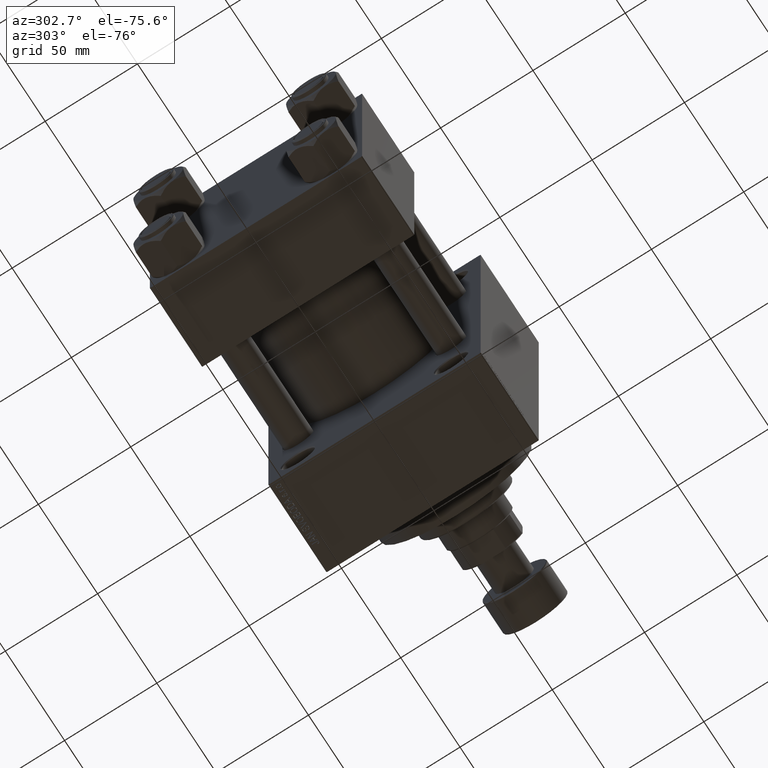
[diagram: clean part render]
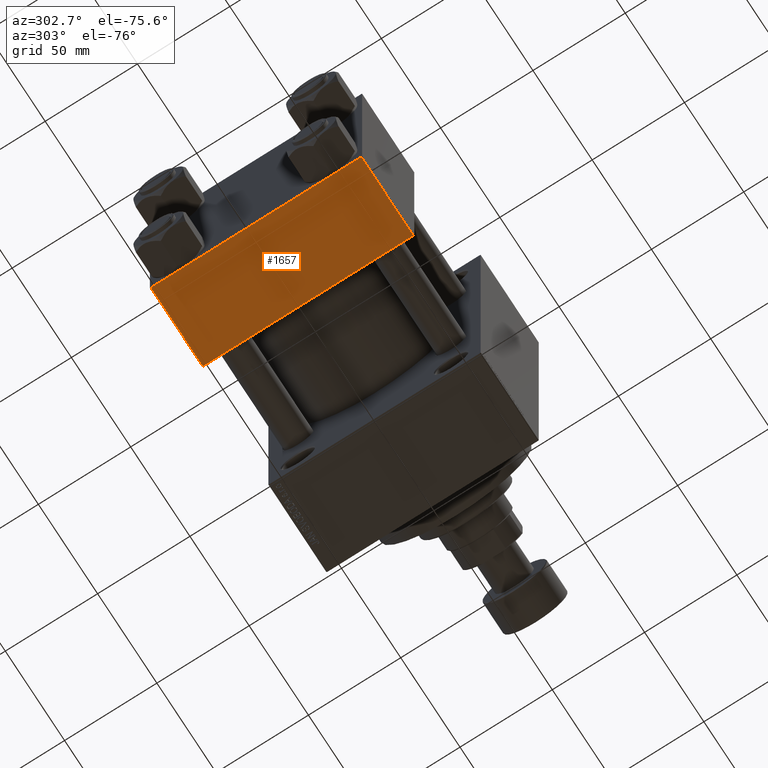
[diagram: same view with one face highlighted and labeled with its STEP entity id]
A machine part, auxiliary view. The second image highlights one B-rep face of the part: STEP entity #1657.
In plain terms, the highlighted planar face has unit normal (0, 0, -1).
Its self-contained STEP definition (entity closure, byte-faithful):
#1657 = ADVANCED_FACE ( 'NONE', ( #33632 ), #8055, .T. ) ;
#3083 = ORIENTED_EDGE ( 'NONE', *, *, #17279, .T. ) ;
#3679 = DIRECTION ( 'NONE',  ( 0.000000000000000000, 1.000000000000000000, 1.206764157201257291E-16 ) ) ;
#3775 = EDGE_CURVE ( 'NONE', #44415, #26022, #28232, .T. ) ;
#8055 = PLANE ( 'NONE',  #34194 ) ;
#8465 = EDGE_CURVE ( 'NONE', #44415, #14851, #14925, .T. ) ;
#8749 = CARTESIAN_POINT ( 'NONE',  ( 44.00000000000000000, 57.00000000000002842, -57.49999999999999289 ) ) ;
#9558 = VECTOR ( 'NONE', #44848, 1000.000000000000000 ) ;
#10482 = DIRECTION ( 'NONE',  ( -1.000000000000000000, 0.000000000000000000, 0.000000000000000000 ) ) ;
#13363 = LINE ( 'NONE', #20431, #29957 ) ;
#14851 = VERTEX_POINT ( 'NONE', #34760 ) ;
#14925 = LINE ( 'NONE', #37568, #9558 ) ;
#17279 = EDGE_CURVE ( 'NONE', #26022, #20741, #13363, .T. ) ;
#17546 = LINE ( 'NONE', #32404, #38543 ) ;
#18260 = ORIENTED_EDGE ( 'NONE', *, *, #18312, .T. ) ;
#18312 = EDGE_CURVE ( 'NONE', #20741, #14851, #17546, .T. ) ;
#19459 = ORIENTED_EDGE ( 'NONE', *, *, #8465, .F. ) ;
#20431 = CARTESIAN_POINT ( 'NONE',  ( 44.00000000000000000, 57.50000000000000000, -57.49999999999999289 ) ) ;
#20741 = VERTEX_POINT ( 'NONE', #40028 ) ;
#20812 = EDGE_LOOP ( 'NONE', ( #19459, #41882, #3083, #18260 ) ) ;
#20921 = CARTESIAN_POINT ( 'NONE',  ( 44.00000000000000000, 57.00000000000002842, -57.49999999999999289 ) ) ;
#22635 = VECTOR ( 'NONE', #32608, 1000.000000000000000 ) ;
#23174 = CARTESIAN_POINT ( 'NONE',  ( 0.000000000000000000, 57.00000000000002842, -57.49999999999999289 ) ) ;
#26022 = VERTEX_POINT ( 'NONE', #8749 ) ;
#28232 = LINE ( 'NONE', #20921, #22635 ) ;
#29752 = CARTESIAN_POINT ( 'NONE',  ( 44.00000000000000000, 57.50000000000000000, -57.49999999999999289 ) ) ;
#29957 = VECTOR ( 'NONE', #43070, 1000.000000000000000 ) ;
#30228 = DIRECTION ( 'NONE',  ( 0.000000000000000000, 1.206764157201257291E-16, -1.000000000000000000 ) ) ;
#32404 = CARTESIAN_POINT ( 'NONE',  ( 0.000000000000000000, -57.00000000000001421, -57.50000000000000711 ) ) ;
#32608 = DIRECTION ( 'NONE',  ( 1.000000000000000000, 0.000000000000000000, 0.000000000000000000 ) ) ;
#33632 = FACE_OUTER_BOUND ( 'NONE', #20812, .T. ) ;
#34194 = AXIS2_PLACEMENT_3D ( 'NONE', #29752, #30228, #3679 ) ;
#34760 = CARTESIAN_POINT ( 'NONE',  ( 0.000000000000000000, -57.00000000000001421, -57.50000000000000711 ) ) ;
#37568 = CARTESIAN_POINT ( 'NONE',  ( 0.000000000000000000, 57.50000000000000000, -57.49999999999999289 ) ) ;
#38543 = VECTOR ( 'NONE', #10482, 1000.000000000000000 ) ;
#40028 = CARTESIAN_POINT ( 'NONE',  ( 44.00000000000000000, -57.00000000000001421, -57.50000000000000711 ) ) ;
#41882 = ORIENTED_EDGE ( 'NONE', *, *, #3775, .T. ) ;
#43070 = DIRECTION ( 'NONE',  ( 0.000000000000000000, -1.000000000000000000, -1.206764157201257291E-16 ) ) ;
#44415 = VERTEX_POINT ( 'NONE', #23174 ) ;
#44848 = DIRECTION ( 'NONE',  ( 0.000000000000000000, -1.000000000000000000, -1.206764157201257291E-16 ) ) ;